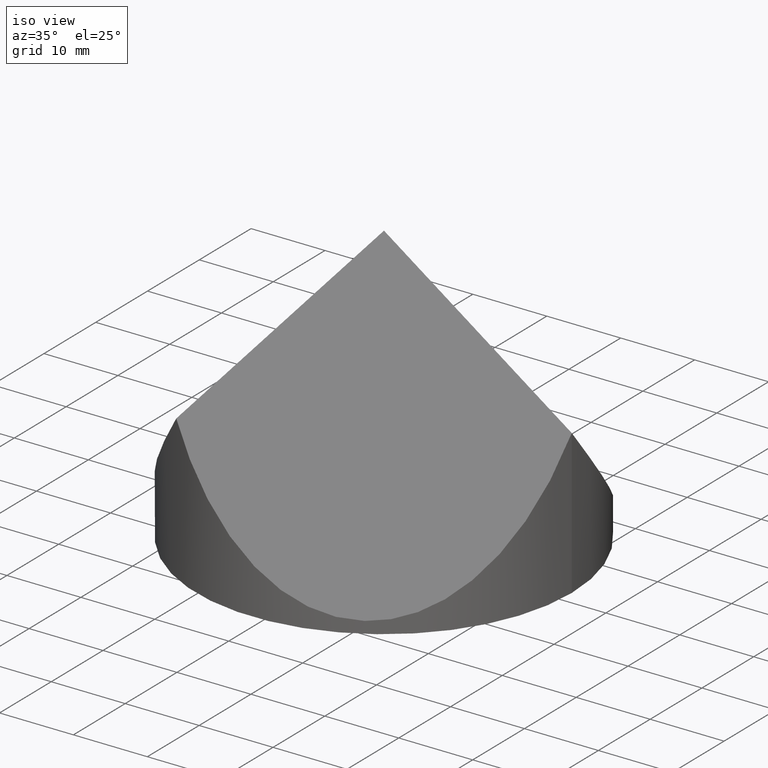
[diagram: clean part render]
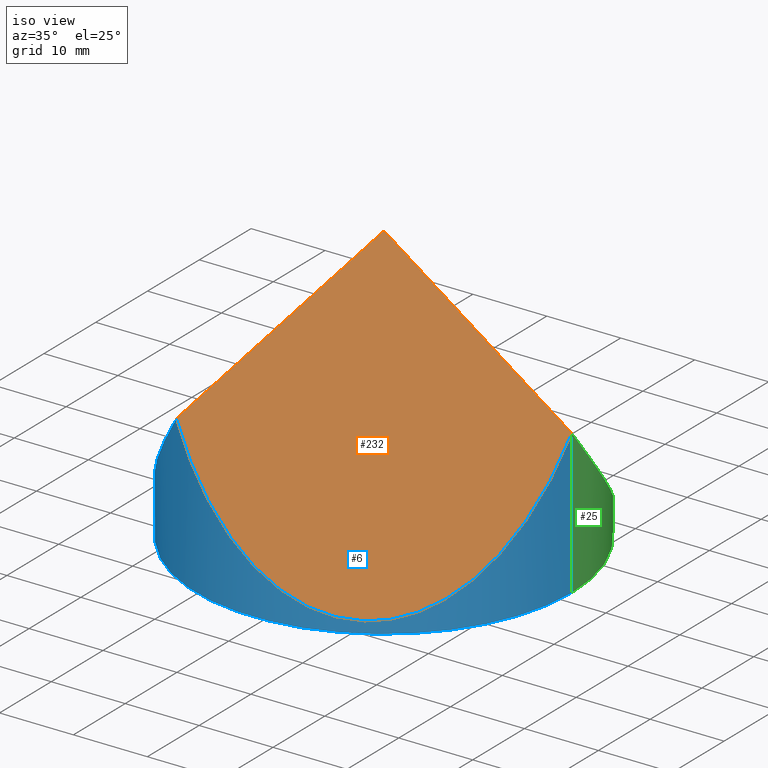
[diagram: same view with three faces highlighted in distinct colors, each labeled with its STEP entity id]
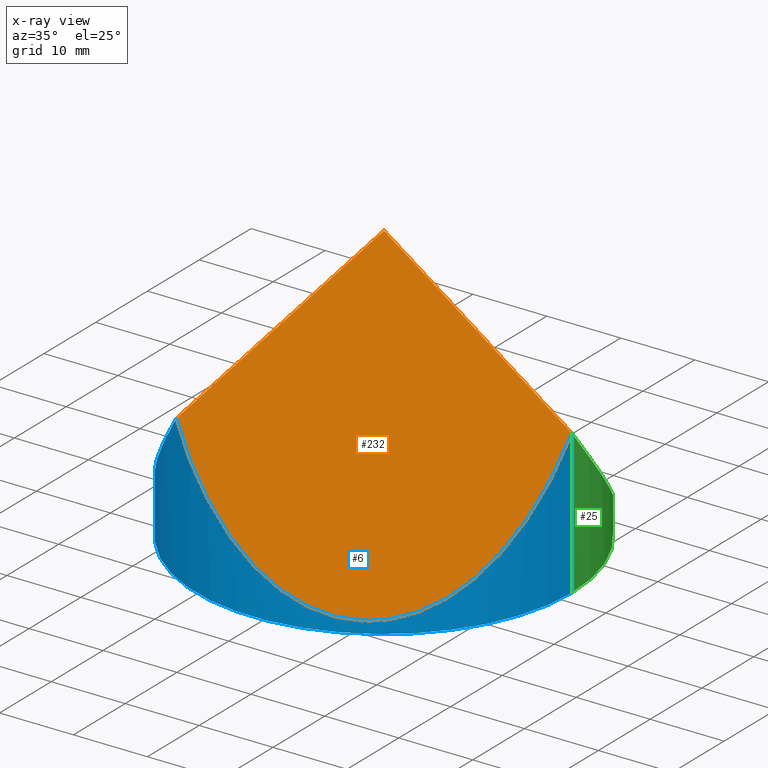
[diagram: x-ray of the same camera — body ghosted, the three highlighted faces saturated]
A machine part, iso view with three faces highlighted in distinct colors.
The next image is the same camera in x-ray (body ghosted, the three faces saturated) — at least one of them is partly hidden behind the body in this view.
Their STEP definitions:

[orange] entity #232 — the highlighted planar face has unit normal (-0.4082, 0.7071, -0.5774).
#13 = ORIENTED_EDGE ( 'NONE', *, *, #43, .T. ) ;
#20 = LINE ( 'NONE', #181, #183 ) ;
#31 = CARTESIAN_POINT ( 'NONE',  ( 25.40000000000000600, 8.287156070320854400E-015, 19.54321793648239600 ) ) ;
#43 = EDGE_CURVE ( 'NONE', #283, #64, #20, .T. ) ;
#44 = CARTESIAN_POINT ( 'NONE',  ( -6.938893903907228400E-015, -3.650717720411316700E-015, 37.49999999999999300 ) ) ;
#47 = CARTESIAN_POINT ( 'NONE',  ( 46.33235910246752800, 26.74999999999989700, 37.50000000000000000 ) ) ;
#62 = EDGE_CURVE ( 'NONE', #73, #64, #179, .T. ) ;
#64 = VERTEX_POINT ( 'NONE', #44 ) ;
#66 = DIRECTION ( 'NONE',  ( -0.8165531063768113300, -1.665334552906125000E-016, 0.5772703218305786900 ) ) ;
#70 = CARTESIAN_POINT ( 'NONE',  ( -12.70000000000003100, -21.99704525612473600, 19.54321793648228600 ) ) ;
#73 = VERTEX_POINT ( 'NONE', #230 ) ;
#90 = CARTESIAN_POINT ( 'NONE',  ( -11.40424666751465700, -19.75273465018338800, 21.37530929077492900 ) ) ;
#117 = ORIENTED_EDGE ( 'NONE', *, *, #62, .F. ) ;
#137 = CARTESIAN_POINT ( 'NONE',  ( 6.349999999999976600, -32.99556788418713200, -7.391955158794225200 ) ) ;
#140 = DIRECTION ( 'NONE',  ( -0.4082200218682779900, 0.7070578185427394100, -0.5774302165486712200 ) ) ;
#144 = FACE_OUTER_BOUND ( 'NONE', #279, .T. ) ;
#166 = DIRECTION ( 'NONE',  ( 0.0000000000000000000, 0.6325343505460012700, 0.7745323075116674600 ) ) ;
#170 =( BOUNDED_CURVE ( )  B_SPLINE_CURVE ( 3, ( #213, #238, #137, #70 ),
 .UNSPECIFIED., .F., .T. ) 
 B_SPLINE_CURVE_WITH_KNOTS ( ( 4, 4 ),
 ( 5.235987755982986200, 7.330382858376182800 ),
 .UNSPECIFIED. ) 
 CURVE ( )  GEOMETRIC_REPRESENTATION_ITEM ( )  RATIONAL_B_SPLINE_CURVE ( ( 1.000000000000000000, 0.6666666666666663000, 0.6666666666666663000, 1.000000000000000000 ) ) 
 REPRESENTATION_ITEM ( '' )  );
#179 = LINE ( 'NONE', #90, #242 ) ;
#181 = CARTESIAN_POINT ( 'NONE',  ( 35.80067308283096800, 1.040834085586084300E-014, 12.19035888678596900 ) ) ;
#183 = VECTOR ( 'NONE', #66, 1000.000000000000100 ) ;
#199 = ORIENTED_EDGE ( 'NONE', *, *, #218, .F. ) ;
#213 = CARTESIAN_POINT ( 'NONE',  ( 25.40000000000000600, 8.287156070320854400E-015, 19.54321793648239600 ) ) ;
#218 = EDGE_CURVE ( 'NONE', #283, #73, #170, .T. ) ;
#230 = CARTESIAN_POINT ( 'NONE',  ( -12.70000000000003100, -21.99704525612473600, 19.54321793648228600 ) ) ;
#232 = ADVANCED_FACE ( 'NONE', ( #144 ), #290, .F. ) ;
#238 = CARTESIAN_POINT ( 'NONE',  ( 25.40000000000000200, -21.99704525612475300, -7.391955158794162100 ) ) ;
#242 = VECTOR ( 'NONE', #254, 1000.000000000000100 ) ;
#254 = DIRECTION ( 'NONE',  ( 0.4082765531884056100, 0.7071557336614137100, 0.5772703218305810200 ) ) ;
#262 = AXIS2_PLACEMENT_3D ( 'NONE', #47, #140, #166 ) ;
#279 = EDGE_LOOP ( 'NONE', ( #13, #117, #199 ) ) ;
#283 = VERTEX_POINT ( 'NONE', #31 ) ;
#290 = PLANE ( 'NONE',  #262 ) ;

[blue] entity #6 — the highlighted cylindrical surface (partial cylindrical patch) has radius 25.4 mm, axis along (-0, -0, -1).
#6 = ADVANCED_FACE ( 'NONE', ( #225 ), #258, .T. ) ;
#21 = DIRECTION ( 'NONE',  ( -1.000000000000000000, 0.0000000000000000000, 0.0000000000000000000 ) ) ;
#31 = CARTESIAN_POINT ( 'NONE',  ( 25.40000000000000600, 8.287156070320854400E-015, 19.54321793648239600 ) ) ;
#35 = CARTESIAN_POINT ( 'NONE',  ( -25.39999999999999900, 0.0000000000000000000, 0.0000000000000000000 ) ) ;
#36 = ORIENTED_EDGE ( 'NONE', *, *, #197, .F. ) ;
#52 = CARTESIAN_POINT ( 'NONE',  ( -25.40000000000000600, -9.297045256124731000, 1.586435872964648800 ) ) ;
#63 = VECTOR ( 'NONE', #212, 1000.000000000000000 ) ;
#70 = CARTESIAN_POINT ( 'NONE',  ( -12.70000000000003100, -21.99704525612473600, 19.54321793648228600 ) ) ;
#73 = VERTEX_POINT ( 'NONE', #230 ) ;
#77 = AXIS2_PLACEMENT_3D ( 'NONE', #307, #129, #21 ) ;
#92 = EDGE_LOOP ( 'NONE', ( #36, #100, #110, #277, #264 ) ) ;
#94 =( BOUNDED_CURVE ( )  B_SPLINE_CURVE ( 3, ( #118, #285, #52, #261 ),
 .UNSPECIFIED., .F., .T. ) 
 B_SPLINE_CURVE_WITH_KNOTS ( ( 4, 4 ),
 ( 5.235987755982989700, 6.283185307179586200 ),
 .UNSPECIFIED. ) 
 CURVE ( )  GEOMETRIC_REPRESENTATION_ITEM ( )  RATIONAL_B_SPLINE_CURVE ( ( 1.000000000000000000, 0.9106836025229592100, 0.9106836025229592100, 1.000000000000000000 ) ) 
 REPRESENTATION_ITEM ( '' )  );
#99 = DIRECTION ( 'NONE',  ( 0.0000000000000000000, 0.0000000000000000000, 1.000000000000000000 ) ) ;
#100 = ORIENTED_EDGE ( 'NONE', *, *, #218, .T. ) ;
#110 = ORIENTED_EDGE ( 'NONE', *, *, #204, .T. ) ;
#115 = DIRECTION ( 'NONE',  ( 1.000000000000000000, 0.0000000000000000000, 0.0000000000000000000 ) ) ;
#118 = CARTESIAN_POINT ( 'NONE',  ( -12.70000000000003100, -21.99704525612473600, 19.54321793648228600 ) ) ;
#129 = DIRECTION ( 'NONE',  ( -0.0000000000000000000, -0.0000000000000000000, -1.000000000000000000 ) ) ;
#134 = LINE ( 'NONE', #259, #63 ) ;
#136 = EDGE_CURVE ( 'NONE', #215, #304, #182, .T. ) ;
#137 = CARTESIAN_POINT ( 'NONE',  ( 6.349999999999976600, -32.99556788418713200, -7.391955158794225200 ) ) ;
#165 = CARTESIAN_POINT ( 'NONE',  ( 0.0000000000000000000, 0.0000000000000000000, 0.0000000000000000000 ) ) ;
#167 = CARTESIAN_POINT ( 'NONE',  ( -25.39999999999999900, 0.0000000000000000000, 37.50000000000000000 ) ) ;
#170 =( BOUNDED_CURVE ( )  B_SPLINE_CURVE ( 3, ( #213, #238, #137, #70 ),
 .UNSPECIFIED., .F., .T. ) 
 B_SPLINE_CURVE_WITH_KNOTS ( ( 4, 4 ),
 ( 5.235987755982986200, 7.330382858376182800 ),
 .UNSPECIFIED. ) 
 CURVE ( )  GEOMETRIC_REPRESENTATION_ITEM ( )  RATIONAL_B_SPLINE_CURVE ( ( 1.000000000000000000, 0.6666666666666663000, 0.6666666666666663000, 1.000000000000000000 ) ) 
 REPRESENTATION_ITEM ( '' )  );
#173 = AXIS2_PLACEMENT_3D ( 'NONE', #165, #99, #115 ) ;
#182 = LINE ( 'NONE', #167, #291 ) ;
#197 = EDGE_CURVE ( 'NONE', #283, #252, #134, .T. ) ;
#204 = EDGE_CURVE ( 'NONE', #73, #215, #94, .T. ) ;
#205 = EDGE_CURVE ( 'NONE', #304, #252, #286, .T. ) ;
#212 = DIRECTION ( 'NONE',  ( -0.0000000000000000000, -0.0000000000000000000, -1.000000000000000000 ) ) ;
#213 = CARTESIAN_POINT ( 'NONE',  ( 25.40000000000000600, 8.287156070320854400E-015, 19.54321793648239600 ) ) ;
#215 = VERTEX_POINT ( 'NONE', #311 ) ;
#218 = EDGE_CURVE ( 'NONE', #283, #73, #170, .T. ) ;
#225 = FACE_OUTER_BOUND ( 'NONE', #92, .T. ) ;
#230 = CARTESIAN_POINT ( 'NONE',  ( -12.70000000000003100, -21.99704525612473600, 19.54321793648228600 ) ) ;
#235 = DIRECTION ( 'NONE',  ( -0.0000000000000000000, -0.0000000000000000000, -1.000000000000000000 ) ) ;
#238 = CARTESIAN_POINT ( 'NONE',  ( 25.40000000000000200, -21.99704525612475300, -7.391955158794162100 ) ) ;
#240 = CARTESIAN_POINT ( 'NONE',  ( 25.39999999999999900, 3.110602869834276900E-015, 0.0000000000000000000 ) ) ;
#252 = VERTEX_POINT ( 'NONE', #240 ) ;
#258 = CYLINDRICAL_SURFACE ( 'NONE', #77, 25.39999999999999900 ) ;
#259 = CARTESIAN_POINT ( 'NONE',  ( 25.39999999999999900, 3.110602869834276900E-015, 37.50000000000000000 ) ) ;
#261 = CARTESIAN_POINT ( 'NONE',  ( -25.39999999999999900, 0.0000000000000000000, 1.586435872964663000 ) ) ;
#264 = ORIENTED_EDGE ( 'NONE', *, *, #205, .T. ) ;
#277 = ORIENTED_EDGE ( 'NONE', *, *, #136, .T. ) ;
#283 = VERTEX_POINT ( 'NONE', #31 ) ;
#285 = CARTESIAN_POINT ( 'NONE',  ( -20.75147737193763600, -17.34852262806235900, 8.159074278432862900 ) ) ;
#286 = CIRCLE ( 'NONE', #173, 25.39999999999999900 ) ;
#291 = VECTOR ( 'NONE', #235, 1000.000000000000000 ) ;
#304 = VERTEX_POINT ( 'NONE', #35 ) ;
#307 = CARTESIAN_POINT ( 'NONE',  ( 0.0000000000000000000, 0.0000000000000000000, 37.50000000000000000 ) ) ;
#311 = CARTESIAN_POINT ( 'NONE',  ( -25.39999999999999900, 0.0000000000000000000, 1.586435872964663000 ) ) ;

[green] entity #25 — the highlighted cylindrical surface (partial cylindrical patch) has radius 25.4 mm, axis along (-0, -0, -1).
#4 =( BOUNDED_CURVE ( )  B_SPLINE_CURVE ( 3, ( #122, #101, #192, #190 ),
 .UNSPECIFIED., .F., .T. ) 
 B_SPLINE_CURVE_WITH_KNOTS ( ( 4, 4 ),
 ( 0.0000000000000000000, 1.047197551196596700 ),
 .UNSPECIFIED. ) 
 CURVE ( )  GEOMETRIC_REPRESENTATION_ITEM ( )  RATIONAL_B_SPLINE_CURVE ( ( 1.000000000000000000, 0.9106836025229592100, 0.9106836025229592100, 1.000000000000000000 ) ) 
 REPRESENTATION_ITEM ( '' )  );
#25 = ADVANCED_FACE ( 'NONE', ( #68 ), #78, .T. ) ;
#30 = VERTEX_POINT ( 'NONE', #255 ) ;
#31 = CARTESIAN_POINT ( 'NONE',  ( 25.40000000000000600, 8.287156070320854400E-015, 19.54321793648239600 ) ) ;
#35 = CARTESIAN_POINT ( 'NONE',  ( -25.39999999999999900, 0.0000000000000000000, 0.0000000000000000000 ) ) ;
#39 = EDGE_CURVE ( 'NONE', #252, #304, #207, .T. ) ;
#42 = CARTESIAN_POINT ( 'NONE',  ( 6.349999999999965900, 32.99556788418713200, -7.391955158794217200 ) ) ;
#63 = VECTOR ( 'NONE', #212, 1000.000000000000000 ) ;
#65 = AXIS2_PLACEMENT_3D ( 'NONE', #160, #228, #114 ) ;
#67 = CARTESIAN_POINT ( 'NONE',  ( 0.0000000000000000000, 0.0000000000000000000, 37.50000000000000000 ) ) ;
#68 = FACE_OUTER_BOUND ( 'NONE', #191, .T. ) ;
#78 = CYLINDRICAL_SURFACE ( 'NONE', #108, 25.39999999999999900 ) ;
#95 = DIRECTION ( 'NONE',  ( -0.0000000000000000000, -0.0000000000000000000, -1.000000000000000000 ) ) ;
#101 = CARTESIAN_POINT ( 'NONE',  ( -25.40000000000000600, 9.297045256124734500, 1.586435872964648800 ) ) ;
#105 = ORIENTED_EDGE ( 'NONE', *, *, #112, .F. ) ;
#108 = AXIS2_PLACEMENT_3D ( 'NONE', #67, #95, #233 ) ;
#112 = EDGE_CURVE ( 'NONE', #283, #30, #257, .T. ) ;
#114 = DIRECTION ( 'NONE',  ( 1.000000000000000000, 0.0000000000000000000, 0.0000000000000000000 ) ) ;
#122 = CARTESIAN_POINT ( 'NONE',  ( -25.39999999999999900, 0.0000000000000000000, 1.586435872964663000 ) ) ;
#131 = CARTESIAN_POINT ( 'NONE',  ( 25.40000000000000200, 21.99704525612476000, -7.391955158794154100 ) ) ;
#134 = LINE ( 'NONE', #259, #63 ) ;
#136 = EDGE_CURVE ( 'NONE', #215, #304, #182, .T. ) ;
#160 = CARTESIAN_POINT ( 'NONE',  ( 0.0000000000000000000, 0.0000000000000000000, 0.0000000000000000000 ) ) ;
#167 = CARTESIAN_POINT ( 'NONE',  ( -25.39999999999999900, 0.0000000000000000000, 37.50000000000000000 ) ) ;
#175 = ORIENTED_EDGE ( 'NONE', *, *, #197, .T. ) ;
#182 = LINE ( 'NONE', #167, #291 ) ;
#190 = CARTESIAN_POINT ( 'NONE',  ( -12.70000000000002400, 21.99704525612472500, 19.54321793648229600 ) ) ;
#191 = EDGE_LOOP ( 'NONE', ( #105, #175, #275, #310, #210 ) ) ;
#192 = CARTESIAN_POINT ( 'NONE',  ( -20.75147737193764300, 17.34852262806235900, 8.159074278432859400 ) ) ;
#197 = EDGE_CURVE ( 'NONE', #283, #252, #134, .T. ) ;
#207 = CIRCLE ( 'NONE', #65, 25.39999999999999900 ) ;
#210 = ORIENTED_EDGE ( 'NONE', *, *, #301, .T. ) ;
#212 = DIRECTION ( 'NONE',  ( -0.0000000000000000000, -0.0000000000000000000, -1.000000000000000000 ) ) ;
#215 = VERTEX_POINT ( 'NONE', #311 ) ;
#228 = DIRECTION ( 'NONE',  ( 0.0000000000000000000, 0.0000000000000000000, 1.000000000000000000 ) ) ;
#233 = DIRECTION ( 'NONE',  ( -1.000000000000000000, 0.0000000000000000000, 0.0000000000000000000 ) ) ;
#235 = DIRECTION ( 'NONE',  ( -0.0000000000000000000, -0.0000000000000000000, -1.000000000000000000 ) ) ;
#240 = CARTESIAN_POINT ( 'NONE',  ( 25.39999999999999900, 3.110602869834276900E-015, 0.0000000000000000000 ) ) ;
#252 = VERTEX_POINT ( 'NONE', #240 ) ;
#255 = CARTESIAN_POINT ( 'NONE',  ( -12.70000000000002400, 21.99704525612472500, 19.54321793648229600 ) ) ;
#257 =( BOUNDED_CURVE ( )  B_SPLINE_CURVE ( 3, ( #281, #131, #42, #284 ),
 .UNSPECIFIED., .F., .T. ) 
 B_SPLINE_CURVE_WITH_KNOTS ( ( 4, 4 ),
 ( 5.235987755982986200, 7.330382858376182800 ),
 .UNSPECIFIED. ) 
 CURVE ( )  GEOMETRIC_REPRESENTATION_ITEM ( )  RATIONAL_B_SPLINE_CURVE ( ( 1.000000000000000000, 0.6666666666666663000, 0.6666666666666663000, 1.000000000000000000 ) ) 
 REPRESENTATION_ITEM ( '' )  );
#259 = CARTESIAN_POINT ( 'NONE',  ( 25.39999999999999900, 3.110602869834276900E-015, 37.50000000000000000 ) ) ;
#275 = ORIENTED_EDGE ( 'NONE', *, *, #39, .T. ) ;
#281 = CARTESIAN_POINT ( 'NONE',  ( 25.40000000000000600, 8.287156070320854400E-015, 19.54321793648239600 ) ) ;
#283 = VERTEX_POINT ( 'NONE', #31 ) ;
#284 = CARTESIAN_POINT ( 'NONE',  ( -12.70000000000002400, 21.99704525612472500, 19.54321793648229600 ) ) ;
#291 = VECTOR ( 'NONE', #235, 1000.000000000000000 ) ;
#301 = EDGE_CURVE ( 'NONE', #215, #30, #4, .T. ) ;
#304 = VERTEX_POINT ( 'NONE', #35 ) ;
#310 = ORIENTED_EDGE ( 'NONE', *, *, #136, .F. ) ;
#311 = CARTESIAN_POINT ( 'NONE',  ( -25.39999999999999900, 0.0000000000000000000, 1.586435872964663000 ) ) ;